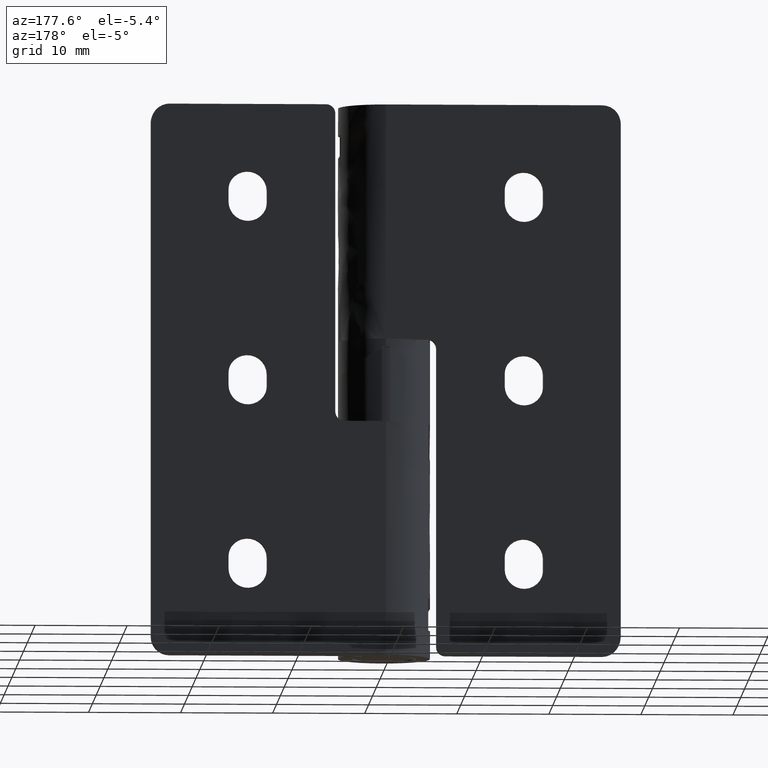
[diagram: clean part render]
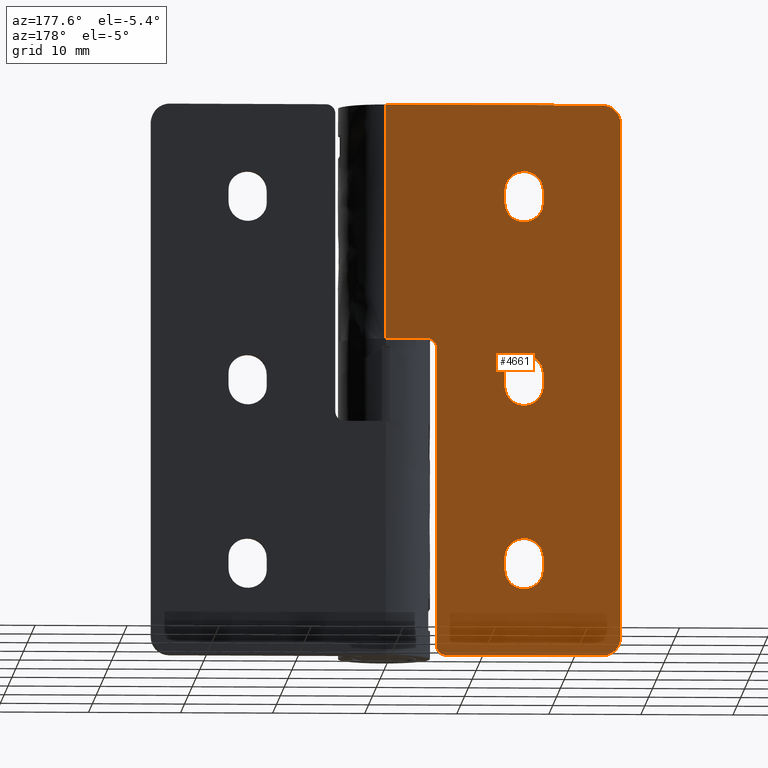
[diagram: same view with one face highlighted and labeled with its STEP entity id]
A machine part, auxiliary view. The second image highlights one B-rep face of the part: STEP entity #4661.
In plain terms, the highlighted face is a freeform B-spline surface patch.
Its self-contained STEP definition (entity closure, byte-faithful):
#1810=CARTESIAN_POINT('',(-4.500000143277900,5.000000999999999,34.500002979310253));
#1811=VERTEX_POINT('',#1810);
#1817=CARTESIAN_POINT('',(-0.000000143277902,5.000000999999999,34.500003000000000));
#1818=VERTEX_POINT('',#1817);
#1819=CARTESIAN_POINT('',(-4.500000143277900,5.000000999999999,34.500002979310253));
#1820=CARTESIAN_POINT('',(-0.000000143277902,5.000000999999999,34.500003000000000));
#1821=QUASI_UNIFORM_CURVE('',1,(#1819,#1820),.UNSPECIFIED.,.F.,.U.);
#1822=EDGE_CURVE('',#1811,#1818,#1821,.T.);
#3906=CARTESIAN_POINT('',(-5.500000138680171,5.000000999999999,33.500002974712501));
#3907=VERTEX_POINT('',#3906);
#3913=CARTESIAN_POINT('',(-5.500000138680171,5.000000999999999,33.500002974712501));
#3914=CARTESIAN_POINT('',(-5.500040437654520,5.000001000003153,33.598181431296773));
#3915=CARTESIAN_POINT('',(-5.470860783307781,5.000001000008527,33.794509247575427));
#3916=CARTESIAN_POINT('',(-5.343588148078143,5.000001000012825,34.063671198611743));
#3917=CARTESIAN_POINT('',(-5.138093862780031,5.000001000015810,34.290413528950403));
#3918=CARTESIAN_POINT('',(-4.851731300690938,5.000001000006431,34.457309957598802));
#3919=CARTESIAN_POINT('',(-4.622732813176861,5.000001000021396,34.500099932658522));
#3920=CARTESIAN_POINT('',(-4.500000143277900,5.000000999999999,34.500002979310253));
#3921=B_SPLINE_CURVE_WITH_KNOTS('',3,(#3913,#3914,#3915,#3916,#3917,#3918,#3919,#3920),.UNSPECIFIED.,.F.,.U.,(4,1,1,1,1,4),(0.000000122912177,0.294530854590059,0.589066416648464,0.883591348285464,1.202672189124218,1.570835744345691),.UNSPECIFIED.);
#3922=EDGE_CURVE('',#3907,#1811,#3921,.T.);
#3942=CARTESIAN_POINT('',(-25.500000993851600,5.000000999999999,2.000000882757790));
#3943=VERTEX_POINT('',#3942);
#3944=CARTESIAN_POINT('',(-23.500000984656101,5.000000999999999,0.000000891953252));
#3945=VERTEX_POINT('',#3944);
#3946=CARTESIAN_POINT('',(-25.500000993851600,5.000000999999999,2.000000882757825));
#3947=CARTESIAN_POINT('',(-25.500000984656133,5.000000999999998,0.000000882757825));
#3948=CARTESIAN_POINT('',(-23.500000984656140,5.000000999999999,0.000000891953290));
#3956=(BOUNDED_CURVE()B_SPLINE_CURVE(2,(#3946,#3947,#3948),.UNSPECIFIED.,.F.,.U.)CURVE()GEOMETRIC_REPRESENTATION_ITEM()QUASI_UNIFORM_CURVE()RATIONAL_B_SPLINE_CURVE((1.0,0.707106781186548,1.0))REPRESENTATION_ITEM(''));
#3957=EDGE_CURVE('',#3943,#3945,#3956,.T.);
#3987=CARTESIAN_POINT('',(-23.500001260520101,5.000000999999999,60.000003891953298));
#3988=VERTEX_POINT('',#3987);
#3989=CARTESIAN_POINT('',(-25.500001251324601,5.000000999999999,58.000003882757902));
#3990=VERTEX_POINT('',#3989);
#3991=CARTESIAN_POINT('',(-23.500001260520062,5.000000999999999,60.000003891953298));
#3992=CARTESIAN_POINT('',(-25.500001260520065,5.000000999999998,60.000003882757845));
#3993=CARTESIAN_POINT('',(-25.500001251324601,5.000000999999999,58.000003882757831));
#4001=(BOUNDED_CURVE()B_SPLINE_CURVE(2,(#3991,#3992,#3993),.UNSPECIFIED.,.F.,.U.)CURVE()GEOMETRIC_REPRESENTATION_ITEM()QUASI_UNIFORM_CURVE()RATIONAL_B_SPLINE_CURVE((1.0,0.707106781186548,1.0))REPRESENTATION_ITEM(''));
#4002=EDGE_CURVE('',#3988,#3990,#4001,.T.);
#4033=CARTESIAN_POINT('',(-6.499999984656120,5.000000999999999,0.000000970114710));
#4034=VERTEX_POINT('',#4033);
#4040=CARTESIAN_POINT('',(-5.499999989253850,5.000000999999999,1.000000974712482));
#4041=VERTEX_POINT('',#4040);
#4042=CARTESIAN_POINT('',(-6.499999984656120,5.000000999999999,0.000000970114710));
#4043=CARTESIAN_POINT('',(-6.360891342399012,5.000001000000004,-0.000146807373591));
#4044=CARTESIAN_POINT('',(-6.148315365963694,5.000000999999990,0.045087540470092));
#4045=CARTESIAN_POINT('',(-5.899450184684739,5.000001000000014,0.190257329204242));
#4046=CARTESIAN_POINT('',(-5.706384175840276,5.000000999999990,0.369458993518620));
#4047=CARTESIAN_POINT('',(-5.544236401020348,5.000000999999995,0.640081710927857));
#4048=CARTESIAN_POINT('',(-5.499895492341695,5.000001000000003,0.877268602601705));
#4049=CARTESIAN_POINT('',(-5.499999989253850,5.000000999999999,1.000000974712482));
#4050=B_SPLINE_CURVE_WITH_KNOTS('',3,(#4042,#4043,#4044,#4045,#4046,#4047,#4048,#4049),.UNSPECIFIED.,.F.,.U.,(4,1,1,1,1,4),(0.000000122910673,0.417254378406568,0.638168557411003,0.859033565748747,1.202672189124077,1.570835744345682),.UNSPECIFIED.);
#4051=EDGE_CURVE('',#4034,#4041,#4050,.T.);
#4068=CARTESIAN_POINT('',(-5.499999989253850,5.000000999999999,1.000000974712482));
#4069=CARTESIAN_POINT('',(-5.500000138680171,5.000000999999999,33.500002974712501));
#4070=QUASI_UNIFORM_CURVE('',1,(#4068,#4069),.UNSPECIFIED.,.F.,.U.);
#4071=EDGE_CURVE('',#4041,#3907,#4070,.T.);
#4095=CARTESIAN_POINT('',(-12.900001211554200,5.000000999999999,49.350003940689298));
#4096=VERTEX_POINT('',#4095);
#4097=CARTESIAN_POINT('',(-17.100001211554250,5.000000999999999,49.350003921378800));
#4098=VERTEX_POINT('',#4097);
#4099=CARTESIAN_POINT('',(-12.900001211554200,5.000000999999999,49.350003940689298));
#4100=CARTESIAN_POINT('',(-12.899888272644430,5.000001000000006,49.126644132473302));
#4101=CARTESIAN_POINT('',(-12.958109646930041,5.000000999999991,48.765929153642361));
#4102=CARTESIAN_POINT('',(-13.143563436319170,5.000001000000002,48.347708777714679));
#4103=CARTESIAN_POINT('',(-13.347356603839520,5.000000999999998,48.038612306918047));
#4104=CARTESIAN_POINT('',(-13.623445609541880,5.000001000000031,47.741359324881238));
#4105=CARTESIAN_POINT('',(-14.008832628820009,5.000000999999957,47.476936016122508));
#4106=CARTESIAN_POINT('',(-14.436216594091560,5.000001000000013,47.312116779767067));
#4107=CARTESIAN_POINT('',(-14.853141887878410,5.000000999999982,47.242418999138593));
#4108=CARTESIAN_POINT('',(-15.336414327161309,5.000001000000053,47.254177241769383));
#4109=CARTESIAN_POINT('',(-15.838142074806591,5.000000999999856,47.396354866648899));
#4110=CARTESIAN_POINT('',(-16.251996583464940,5.000001000000288,47.647981095515462));
#4111=CARTESIAN_POINT('',(-16.558342354158182,5.000000999999818,47.925634004589277));
#4112=CARTESIAN_POINT('',(-16.806141465328722,5.000001000000109,48.247179753247543));
#4113=CARTESIAN_POINT('',(-17.035267592938801,5.000000999999924,48.731590101905027));
#4114=CARTESIAN_POINT('',(-17.100158362948559,5.000001000000024,49.118043903673282));
#4115=CARTESIAN_POINT('',(-17.100001211554250,5.000000999999999,49.350003921378800));
#4116=B_SPLINE_CURVE_WITH_KNOTS('',3,(#4099,#4100,#4101,#4102,#4103,#4104,#4105,#4106,#4107,#4108,#4109,#4110,#4111,#4112,#4113,#4114,#4115),.UNSPECIFIED.,.F.,.U.,(4,1,1,1,1,1,1,1,1,1,1,1,1,1,4),(0.000000199951513,0.670040539559049,1.082383889846676,1.365869212303922,1.778219644650982,2.293611644666384,2.757493011584967,3.144062942086801,3.556406841945653,4.200704881081686,4.690304711693548,4.999578477961399,5.437687945215140,5.901570323387792,6.597385968125955),.UNSPECIFIED.);
#4117=EDGE_CURVE('',#4096,#4098,#4116,.T.);
#4138=CARTESIAN_POINT('',(-12.900001217531299,5.000000999999999,50.650003940689302));
#4139=VERTEX_POINT('',#4138);
#4140=CARTESIAN_POINT('',(-12.900001217531299,5.000000999999999,50.650003940689302));
#4141=CARTESIAN_POINT('',(-12.900001211554200,5.000000999999999,49.350003940689298));
#4142=QUASI_UNIFORM_CURVE('',1,(#4140,#4141),.UNSPECIFIED.,.F.,.U.);
#4143=EDGE_CURVE('',#4139,#4096,#4142,.T.);
#4173=CARTESIAN_POINT('',(-17.100001217531300,5.000000999999999,50.650003921378797));
#4174=VERTEX_POINT('',#4173);
#4175=CARTESIAN_POINT('',(-17.100001217531300,5.000000999999999,50.650003921378797));
#4176=CARTESIAN_POINT('',(-17.100010010457780,5.000001000000003,50.778847038471639));
#4177=CARTESIAN_POINT('',(-17.073849166235998,5.000000999999990,51.062321823689601));
#4178=CARTESIAN_POINT('',(-16.948419036794721,5.000001000000011,51.475854271229018));
#4179=CARTESIAN_POINT('',(-16.712611798174951,5.000000999999997,51.898188045458852));
#4180=CARTESIAN_POINT('',(-16.413936870981299,5.000001000000013,52.223664913587363));
#4181=CARTESIAN_POINT('',(-16.000032276700878,5.000000999999998,52.519034072259572));
#4182=CARTESIAN_POINT('',(-15.557291585826240,5.000001000000011,52.699266234362327));
#4183=CARTESIAN_POINT('',(-15.060459553528011,5.000001000000004,52.763534300466567));
#4184=CARTESIAN_POINT('',(-14.673109325911399,5.000000999999997,52.734956532642087));
#4185=CARTESIAN_POINT('',(-14.297121317827131,5.000001000000003,52.640787497550669));
#4186=CARTESIAN_POINT('',(-13.982133996108210,5.000000999999996,52.498853608829151));
#4187=CARTESIAN_POINT('',(-13.668439797104410,5.000001000000006,52.286438109609222));
#4188=CARTESIAN_POINT('',(-13.399603188699251,5.000000999999983,52.030512174800009));
#4189=CARTESIAN_POINT('',(-13.161030351948140,5.000001000000034,51.691751015425893));
#4190=CARTESIAN_POINT('',(-12.958134712573010,5.000000999999878,51.234054135086339));
#4191=CARTESIAN_POINT('',(-12.899865556882270,5.000001000000237,50.873361436549636));
#4192=CARTESIAN_POINT('',(-12.900001217531299,5.000000999999999,50.650003940689302));
#4193=B_SPLINE_CURVE_WITH_KNOTS('',3,(#4175,#4176,#4177,#4178,#4179,#4180,#4181,#4182,#4183,#4184,#4185,#4186,#4187,#4188,#4189,#4190,#4191,#4192),.UNSPECIFIED.,.F.,.U.,(4,1,1,1,1,1,1,1,1,1,1,1,1,1,1,4),(0.000000250824237,0.386531670643053,0.850432349274041,1.288542620641740,1.829751291523085,2.164785131361581,2.809078136130794,3.247182589080864,3.659453732582800,3.968724810296493,4.406831475811062,4.690322017257158,5.102667436112419,5.515020542350607,5.927369639314609,6.597385968146974),.UNSPECIFIED.);
#4194=EDGE_CURVE('',#4174,#4139,#4193,.T.);
#4211=CARTESIAN_POINT('',(-17.100001211554250,5.000000999999999,49.350003921378800));
#4212=CARTESIAN_POINT('',(-17.100001217531300,5.000000999999999,50.650003921378797));
#4213=QUASI_UNIFORM_CURVE('',1,(#4211,#4212),.UNSPECIFIED.,.F.,.U.);
#4214=EDGE_CURVE('',#4098,#4174,#4213,.T.);
#4240=CARTESIAN_POINT('',(-12.900001119599580,5.000000999999999,29.350002940689251));
#4241=VERTEX_POINT('',#4240);
#4242=CARTESIAN_POINT('',(-17.100001119599600,5.000000999999999,29.350002921378799));
#4243=VERTEX_POINT('',#4242);
#4244=CARTESIAN_POINT('',(-12.900001119599580,5.000000999999999,29.350002940689251));
#4245=CARTESIAN_POINT('',(-12.899976710489151,5.000000999999996,29.195377163182620));
#4246=CARTESIAN_POINT('',(-12.933353228095919,5.000001000000008,28.894734556520330));
#4247=CARTESIAN_POINT('',(-13.071327529603421,5.000001000000006,28.485515320348750));
#4248=CARTESIAN_POINT('',(-13.299106380701810,5.000000999999990,28.089059481260570));
#4249=CARTESIAN_POINT('',(-13.609485788727749,5.000001000000038,27.750803795683751));
#4250=CARTESIAN_POINT('',(-14.045774019317250,5.000001000000038,27.455381647080308));
#4251=CARTESIAN_POINT('',(-14.542946042642900,5.000000999999788,27.274018787347298));
#4252=CARTESIAN_POINT('',(-15.086907781354631,5.000001000000530,27.230564213068661));
#4253=CARTESIAN_POINT('',(-15.564593986169870,5.000000999999746,27.310459896350331));
#4254=CARTESIAN_POINT('',(-15.965336901928410,5.000001000000077,27.470730063220241));
#4255=CARTESIAN_POINT('',(-16.277515603233219,5.000000999999963,27.671118597716941));
#4256=CARTESIAN_POINT('',(-16.564733138687458,5.000001000000020,27.931425700616650));
#4257=CARTESIAN_POINT('',(-16.836920861147860,5.000001000000030,28.289074571282320));
#4258=CARTESIAN_POINT('',(-17.048651712950349,5.000000999999879,28.783076309899009));
#4259=CARTESIAN_POINT('',(-17.100060491611298,5.000001000000148,29.161018709238618));
#4260=CARTESIAN_POINT('',(-17.100001119599600,5.000000999999999,29.350002921378799));
#4261=B_SPLINE_CURVE_WITH_KNOTS('',3,(#4244,#4245,#4246,#4247,#4248,#4249,#4250,#4251,#4252,#4253,#4254,#4255,#4256,#4257,#4258,#4259,#4260),.UNSPECIFIED.,.F.,.U.,(4,1,1,1,1,1,1,1,1,1,1,1,1,1,4),(0.000000250830070,0.463874217727692,0.901970078031725,1.288542620645972,1.829751291525859,2.267866138267554,2.860613809470613,3.401736662219803,3.891394545155153,4.303748048568531,4.690322017257920,4.999583374777340,5.463478113885309,6.030443597306898,6.597385968147123),.UNSPECIFIED.);
#4262=EDGE_CURVE('',#4241,#4243,#4261,.T.);
#4283=CARTESIAN_POINT('',(-17.100001125576650,5.000000999999999,30.650002921378750));
#4284=VERTEX_POINT('',#4283);
#4285=CARTESIAN_POINT('',(-17.100001125576650,5.000000999999999,30.650002921378750));
#4286=CARTESIAN_POINT('',(-17.100001119599600,5.000000999999999,29.350002921378799));
#4287=QUASI_UNIFORM_CURVE('',1,(#4285,#4286),.UNSPECIFIED.,.F.,.U.);
#4288=EDGE_CURVE('',#4284,#4243,#4287,.T.);
#4318=CARTESIAN_POINT('',(-12.900001125576621,5.000000999999999,30.650002940689252));
#4319=VERTEX_POINT('',#4318);
#4320=CARTESIAN_POINT('',(-17.100001125576650,5.000000999999999,30.650002921378750));
#4321=CARTESIAN_POINT('',(-17.100120453863180,5.000000999999997,30.873359471635229));
#4322=CARTESIAN_POINT('',(-17.043262158260390,5.000001000000014,31.225464564097091));
#4323=CARTESIAN_POINT('',(-16.839842546001972,5.000000999999982,31.692042903350512));
#4324=CARTESIAN_POINT('',(-16.615890815748809,5.000001000000041,32.010027518008307));
#4325=CARTESIAN_POINT('',(-16.313795183652431,5.000000999999995,32.304800817631339));
#4326=CARTESIAN_POINT('',(-15.959996431734419,5.000000999999973,32.538086810741063));
#4327=CARTESIAN_POINT('',(-15.457721493506170,5.000001000000016,32.724848669097369));
#4328=CARTESIAN_POINT('',(-14.929802150633860,5.000001000000021,32.773599377750799));
#4329=CARTESIAN_POINT('',(-14.461445813506749,5.000000999999951,32.692224245350069));
#4330=CARTESIAN_POINT('',(-14.098128405905710,5.000001000000018,32.557169243940770));
#4331=CARTESIAN_POINT('',(-13.709108579879359,5.000001000000098,32.333735145253762));
#4332=CARTESIAN_POINT('',(-13.339862093091840,5.000000999999922,31.977888441213729));
#4333=CARTESIAN_POINT('',(-13.093510288900200,5.000001000000063,31.560850620573859));
#4334=CARTESIAN_POINT('',(-12.939712351720800,5.000000999999870,31.131018080829399));
#4335=CARTESIAN_POINT('',(-12.899929787552340,5.000001000000218,30.838991545495269));
#4336=CARTESIAN_POINT('',(-12.900001125576621,5.000000999999999,30.650002940689252));
#4337=B_SPLINE_CURVE_WITH_KNOTS('',3,(#4320,#4321,#4322,#4323,#4324,#4325,#4326,#4327,#4328,#4329,#4330,#4331,#4332,#4333,#4334,#4335,#4336),.UNSPECIFIED.,.F.,.U.,(4,1,1,1,1,1,1,1,1,1,1,1,1,1,4),(0.000000250822861,0.670019336642135,1.056594809511029,1.520490472457114,1.829751291518774,2.319403521277909,2.783275474649772,3.427542030108682,3.891394545150567,4.200671844440417,4.587237926660784,5.231530328838399,5.721176205829684,6.030443597305924,6.597385968146972),.UNSPECIFIED.);
#4338=EDGE_CURVE('',#4284,#4319,#4337,.T.);
#4355=CARTESIAN_POINT('',(-12.900001119599580,5.000000999999999,29.350002940689251));
#4356=CARTESIAN_POINT('',(-12.900001125576621,5.000000999999999,30.650002940689252));
#4357=QUASI_UNIFORM_CURVE('',1,(#4355,#4356),.UNSPECIFIED.,.F.,.U.);
#4358=EDGE_CURVE('',#4241,#4319,#4357,.T.);
#4384=CARTESIAN_POINT('',(-12.900001027644921,5.000000999999999,9.350001940689259));
#4385=VERTEX_POINT('',#4384);
#4386=CARTESIAN_POINT('',(-17.100001027644950,5.000000999999999,9.350001921378789));
#4387=VERTEX_POINT('',#4386);
#4388=CARTESIAN_POINT('',(-12.900001027644921,5.000000999999999,9.350001940689259));
#4389=CARTESIAN_POINT('',(-12.899950298605001,5.000000999999998,9.169606476650836));
#4390=CARTESIAN_POINT('',(-12.938990545220260,5.000001000000013,8.868975943474826));
#4391=CARTESIAN_POINT('',(-13.092936898224609,5.000000999999991,8.438712170226529));
#4392=CARTESIAN_POINT('',(-13.306212018979179,5.000001000000011,8.082866902033981));
#4393=CARTESIAN_POINT('',(-13.611708819853570,5.000000999999989,7.754011150753769));
#4394=CARTESIAN_POINT('',(-13.929685756527570,5.000000999999985,7.530081827254806));
#4395=CARTESIAN_POINT('',(-14.296550324004720,5.000001000000047,7.359306510035472));
#4396=CARTESIAN_POINT('',(-14.664272896623300,5.000000999999891,7.262376144700857));
#4397=CARTESIAN_POINT('',(-15.051895914832761,5.000001000000154,7.240978790247011));
#4398=CARTESIAN_POINT('',(-15.454285622754931,5.000000999999990,7.285571839517364));
#4399=CARTESIAN_POINT('',(-15.875081954991570,5.000000999999805,7.418864727501360));
#4400=CARTESIAN_POINT('',(-16.311142424932189,5.000001000000350,7.683887415540376));
#4401=CARTESIAN_POINT('',(-16.623261405924438,5.000000999999833,7.996009034630828));
#4402=CARTESIAN_POINT('',(-16.838575534712820,5.000001000000035,8.318332226362672));
#4403=CARTESIAN_POINT('',(-17.035018562301040,5.000000999999982,8.740206801529860));
#4404=CARTESIAN_POINT('',(-17.100215191291039,5.000001000000006,9.100848326709091));
#4405=CARTESIAN_POINT('',(-17.100001027644950,5.000000999999999,9.350001921378789));
#4406=B_SPLINE_CURVE_WITH_KNOTS('',3,(#4388,#4389,#4390,#4391,#4392,#4393,#4394,#4395,#4396,#4397,#4398,#4399,#4400,#4401,#4402,#4403,#4404,#4405),.UNSPECIFIED.,.F.,.U.,(4,1,1,1,1,1,1,1,1,1,1,1,1,1,1,4),(0.000000199953982,0.541174164181887,0.901985172051520,1.365869212306924,1.778219644653337,2.242075486487044,2.525548282714926,2.989439223166841,3.376007448451969,3.685270821895695,4.200704881083373,4.690304711695357,5.205740782045989,5.515002470576241,5.850031047943427,6.597385968125867),.UNSPECIFIED.);
#4407=EDGE_CURVE('',#4385,#4387,#4406,.T.);
#4428=CARTESIAN_POINT('',(-17.100001033622000,5.000000999999999,10.650001921378760));
#4429=VERTEX_POINT('',#4428);
#4430=CARTESIAN_POINT('',(-17.100001033622000,5.000000999999999,10.650001921378760));
#4431=CARTESIAN_POINT('',(-17.100001027644950,5.000000999999999,9.350001921378789));
#4432=QUASI_UNIFORM_CURVE('',1,(#4430,#4431),.UNSPECIFIED.,.F.,.U.);
#4433=EDGE_CURVE('',#4429,#4387,#4432,.T.);
#4463=CARTESIAN_POINT('',(-12.900001033621960,5.000000999999999,10.650001940689240));
#4464=VERTEX_POINT('',#4463);
#4465=CARTESIAN_POINT('',(-17.100001033622000,5.000000999999999,10.650001921378760));
#4466=CARTESIAN_POINT('',(-17.100064653411071,5.000001000000008,10.838987842109940));
#4467=CARTESIAN_POINT('',(-17.054463767099680,5.000000999999989,11.173972271585610));
#4468=CARTESIAN_POINT('',(-16.896560385918111,5.000001000000004,11.575917400756291));
#4469=CARTESIAN_POINT('',(-16.677470307745828,5.000001000000026,11.936475052023541));
#4470=CARTESIAN_POINT('',(-16.390522059016941,5.000000999999944,12.249209936269491));
#4471=CARTESIAN_POINT('',(-16.018576626982490,5.000001000000084,12.500991805402309));
#4472=CARTESIAN_POINT('',(-15.622334956185240,5.000000999999968,12.670861851851109));
#4473=CARTESIAN_POINT('',(-15.241105273735970,5.000001000000028,12.749116988633340));
#4474=CARTESIAN_POINT('',(-14.819080277083970,5.000000999999958,12.754289532861939));
#4475=CARTESIAN_POINT('',(-14.461448368310830,5.000001000000050,12.692238533966229));
#4476=CARTESIAN_POINT('',(-14.065816079874621,5.000001000000023,12.545186105596180));
#4477=CARTESIAN_POINT('',(-13.718437920763190,5.000000999999913,12.334074528425811));
#4478=CARTESIAN_POINT('',(-13.374581844445469,5.000001000000030,12.006710244846710));
#4479=CARTESIAN_POINT('',(-13.124537824149289,5.000001000000073,11.632489187611020));
#4480=CARTESIAN_POINT('',(-12.944380260746980,5.000000999999849,11.165377340352560));
#4481=CARTESIAN_POINT('',(-12.899933528872220,5.000000999999948,10.838988428886390));
#4482=CARTESIAN_POINT('',(-12.900001033621960,5.000000999999999,10.650001940689240));
#4483=B_SPLINE_CURVE_WITH_KNOTS('',3,(#4465,#4466,#4467,#4468,#4469,#4470,#4471,#4472,#4473,#4474,#4475,#4476,#4477,#4478,#4479,#4480,#4481,#4482),.UNSPECIFIED.,.F.,.U.,(4,1,1,1,1,1,1,1,1,1,1,1,1,1,1,4),(0.000000250873279,0.566946133547643,1.005051388931756,1.288542620681404,1.829751291557904,2.267866138296477,2.628677063056699,3.118331162194171,3.427542030135244,3.891394545173176,4.200671844460371,4.690322017270689,5.102667436123313,5.618099942287825,6.030443597310288,6.597385968146975),.UNSPECIFIED.);
#4484=EDGE_CURVE('',#4429,#4464,#4483,.T.);
#4501=CARTESIAN_POINT('',(-12.900001027644921,5.000000999999999,9.350001940689259));
#4502=CARTESIAN_POINT('',(-12.900001033621960,5.000000999999999,10.650001940689240));
#4503=QUASI_UNIFORM_CURVE('',1,(#4501,#4502),.UNSPECIFIED.,.F.,.U.);
#4504=EDGE_CURVE('',#4385,#4464,#4503,.T.);
#4526=CARTESIAN_POINT('',(-0.000000260520086,5.0,60.000004000000096));
#4527=VERTEX_POINT('',#4526);
#4564=CARTESIAN_POINT('',(-0.000000260520086,5.0,60.000004000000096));
#4565=CARTESIAN_POINT('',(-23.500001260520101,5.000000999999999,60.000003891953298));
#4566=QUASI_UNIFORM_CURVE('',1,(#4564,#4565),.UNSPECIFIED.,.F.,.U.);
#4567=EDGE_CURVE('',#4527,#3988,#4566,.T.);
#4578=CARTESIAN_POINT('',(-25.500001251324601,5.000000999999999,58.000003882757902));
#4579=CARTESIAN_POINT('',(-25.500000993851600,5.000000999999999,2.000000882757790));
#4580=QUASI_UNIFORM_CURVE('',1,(#4578,#4579),.UNSPECIFIED.,.F.,.U.);
#4581=EDGE_CURVE('',#3990,#3943,#4580,.T.);
#4594=CARTESIAN_POINT('',(-6.499999984656120,5.000000999999999,0.000000970114710));
#4595=CARTESIAN_POINT('',(-23.500000984656101,5.000000999999999,0.000000891953252));
#4596=QUASI_UNIFORM_CURVE('',1,(#4594,#4595),.UNSPECIFIED.,.F.,.U.);
#4597=EDGE_CURVE('',#4034,#3945,#4596,.T.);
#4622=CARTESIAN_POINT('',(-26.773725971402779,5.000000999999999,-2.996999156656824));
#4623=CARTESIAN_POINT('',(-26.773726274825560,5.000000999999999,62.997005519785517));
#4624=CARTESIAN_POINT('',(1.273725713612663,5.000000999999999,-2.996999027702143));
#4625=CARTESIAN_POINT('',(1.273725410189884,5.000000999999999,62.997005648740192));
#4626=B_SPLINE_SURFACE_WITH_KNOTS('',1,1,((#4622,#4624),(#4623,#4625)),.UNSPECIFIED.,.F.,.F.,.U.,(2,2),(2,2),(0.0,65.994004676442344),(0.0,28.047451685015439),.UNSPECIFIED.);
#4627=ORIENTED_EDGE('',*,*,#4567,.F.);
#4628=CARTESIAN_POINT('',(-0.000000260520086,5.0,60.000004000000096));
#4629=CARTESIAN_POINT('',(-0.000000143277902,5.000000999999999,34.500003000000000));
#4630=QUASI_UNIFORM_CURVE('',1,(#4628,#4629),.UNSPECIFIED.,.F.,.U.);
#4631=EDGE_CURVE('',#4527,#1818,#4630,.T.);
#4632=ORIENTED_EDGE('',*,*,#4631,.T.);
#4633=ORIENTED_EDGE('',*,*,#1822,.F.);
#4634=ORIENTED_EDGE('',*,*,#3922,.F.);
#4635=ORIENTED_EDGE('',*,*,#4071,.F.);
#4636=ORIENTED_EDGE('',*,*,#4051,.F.);
#4637=ORIENTED_EDGE('',*,*,#4597,.T.);
#4638=ORIENTED_EDGE('',*,*,#3957,.F.);
#4639=ORIENTED_EDGE('',*,*,#4581,.F.);
#4640=ORIENTED_EDGE('',*,*,#4002,.F.);
#4641=EDGE_LOOP('',(#4627,#4632,#4633,#4634,#4635,#4636,#4637,#4638,#4639,#4640));
#4642=FACE_OUTER_BOUND('',#4641,.T.);
#4643=ORIENTED_EDGE('',*,*,#4358,.T.);
#4644=ORIENTED_EDGE('',*,*,#4338,.F.);
#4645=ORIENTED_EDGE('',*,*,#4288,.T.);
#4646=ORIENTED_EDGE('',*,*,#4262,.F.);
#4647=EDGE_LOOP('',(#4643,#4644,#4645,#4646));
#4648=FACE_BOUND('',#4647,.T.);
#4649=ORIENTED_EDGE('',*,*,#4504,.T.);
#4650=ORIENTED_EDGE('',*,*,#4484,.F.);
#4651=ORIENTED_EDGE('',*,*,#4433,.T.);
#4652=ORIENTED_EDGE('',*,*,#4407,.F.);
#4653=EDGE_LOOP('',(#4649,#4650,#4651,#4652));
#4654=FACE_BOUND('',#4653,.T.);
#4655=ORIENTED_EDGE('',*,*,#4117,.F.);
#4656=ORIENTED_EDGE('',*,*,#4143,.F.);
#4657=ORIENTED_EDGE('',*,*,#4194,.F.);
#4658=ORIENTED_EDGE('',*,*,#4214,.F.);
#4659=EDGE_LOOP('',(#4655,#4656,#4657,#4658));
#4660=FACE_BOUND('',#4659,.T.);
#4661=ADVANCED_FACE('',(#4642,#4648,#4654,#4660),#4626,.T.);